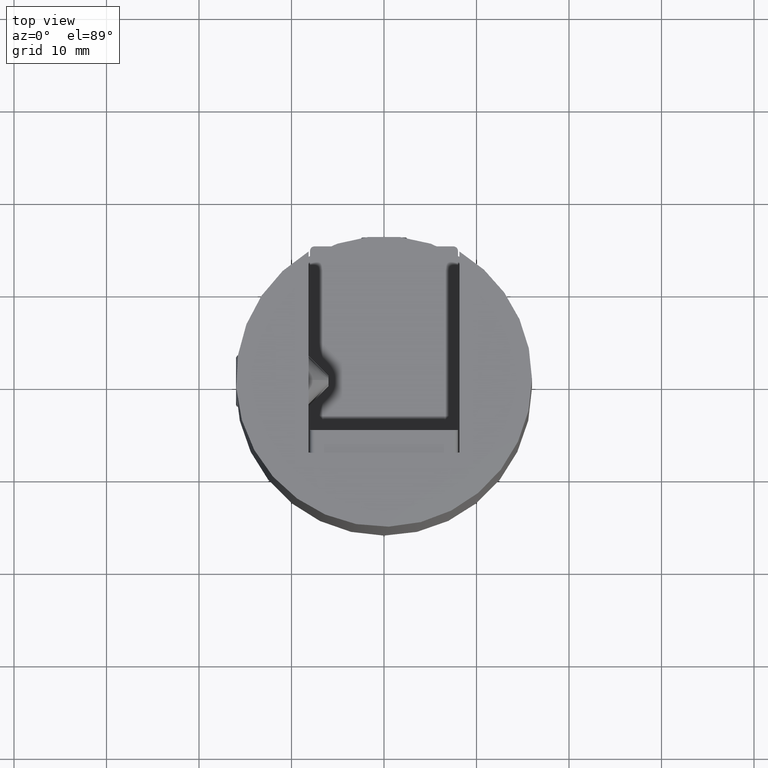
[diagram: clean part render]
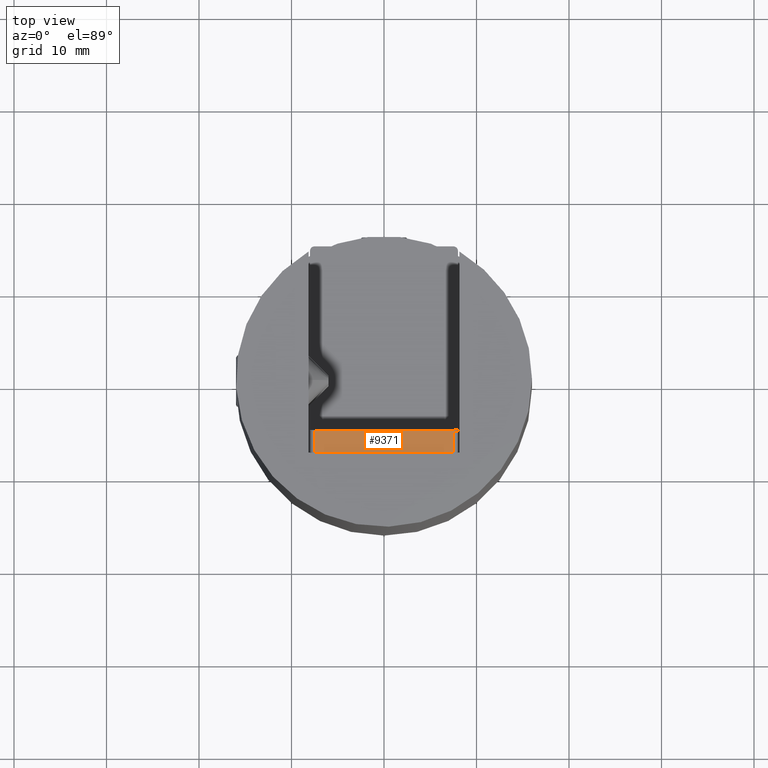
[diagram: same view with one face highlighted and labeled with its STEP entity id]
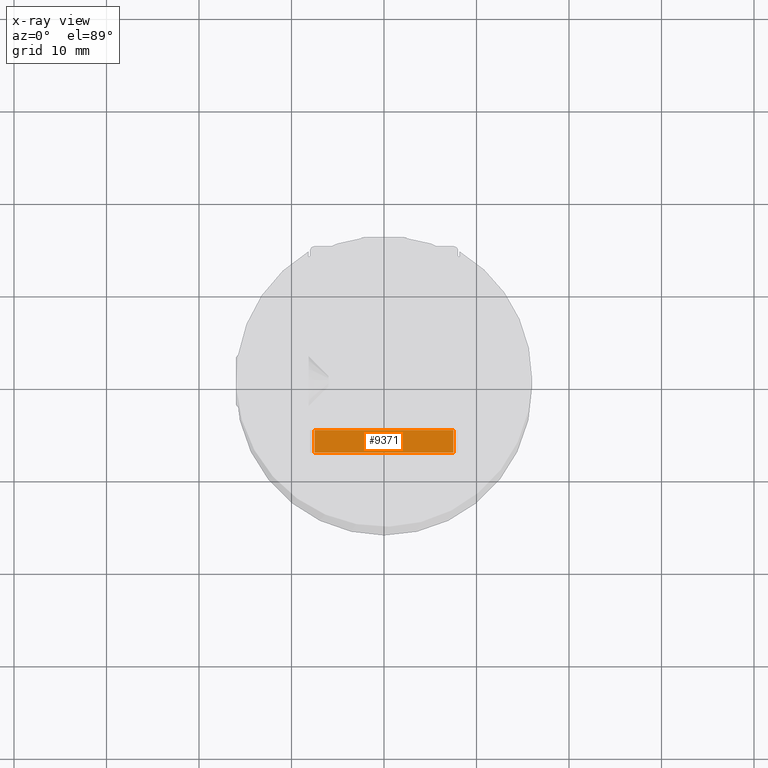
[diagram: x-ray of the same camera — body ghosted, the highlighted face saturated]
A machine part, top view. The second image highlights one B-rep face of the part: STEP entity #9371.
The next image is the same camera in x-ray: the body ghosted, the highlighted face saturated — about 0% of this face is hidden behind the body in this view.
In plain terms, the highlighted planar face has unit normal (0, 0, 1).
Its self-contained STEP definition (entity closure, byte-faithful):
#385 = VERTEX_POINT ( 'NONE', #16170 ) ;
#401 = VERTEX_POINT ( 'NONE', #13034 ) ;
#412 = PLANE ( 'NONE',  #21071 ) ;
#499 = DIRECTION ( 'NONE',  ( 0.000000000000000000, 0.000000000000000000, -1.000000000000000000 ) ) ;
#1289 = CARTESIAN_POINT ( 'NONE',  ( -16.19999999999999929, 2.450000000000000178, -7.499999999999996447 ) ) ;
#1957 = CARTESIAN_POINT ( 'NONE',  ( -16.19999999999999929, 2.450000000000000178, 7.499999999999996447 ) ) ;
#2162 = FACE_OUTER_BOUND ( 'NONE', #5921, .T. ) ;
#2176 = EDGE_CURVE ( 'NONE', #12094, #385, #3944, .T. ) ;
#3267 = ORIENTED_EDGE ( 'NONE', *, *, #2176, .F. ) ;
#3944 = LINE ( 'NONE', #12699, #11796 ) ;
#4029 = ORIENTED_EDGE ( 'NONE', *, *, #19379, .T. ) ;
#4832 = VERTEX_POINT ( 'NONE', #1289 ) ;
#5921 = EDGE_LOOP ( 'NONE', ( #3267, #7541, #14006, #4029 ) ) ;
#6598 = VECTOR ( 'NONE', #499, 1000.000000000000000 ) ;
#7459 = CARTESIAN_POINT ( 'NONE',  ( -16.19999999999999929, 2.450000000000000178, -7.499999999999996447 ) ) ;
#7541 = ORIENTED_EDGE ( 'NONE', *, *, #20139, .F. ) ;
#7874 = DIRECTION ( 'NONE',  ( 0.000000000000000000, 0.000000000000000000, -1.000000000000000000 ) ) ;
#9371 = ADVANCED_FACE ( 'NONE', ( #2162 ), #412, .T. ) ;
#10702 = LINE ( 'NONE', #7459, #10940 ) ;
#10940 = VECTOR ( 'NONE', #12145, 1000.000000000000000 ) ;
#11796 = VECTOR ( 'NONE', #7874, 1000.000000000000000 ) ;
#11856 = DIRECTION ( 'NONE',  ( -0.000000000000000000, -1.000000000000000000, -0.000000000000000000 ) ) ;
#12094 = VERTEX_POINT ( 'NONE', #18776 ) ;
#12145 = DIRECTION ( 'NONE',  ( -0.000000000000000000, -1.000000000000000000, -0.000000000000000000 ) ) ;
#12699 = CARTESIAN_POINT ( 'NONE',  ( -16.19999999999999929, 0.000000000000000000, 7.499999999999996447 ) ) ;
#13034 = CARTESIAN_POINT ( 'NONE',  ( -16.19999999999999929, 2.450000000000000178, 7.499999999999996447 ) ) ;
#13134 = CARTESIAN_POINT ( 'NONE',  ( -16.19999999999999929, 2.450000000000000178, 7.499999999999996447 ) ) ;
#13188 = DIRECTION ( 'NONE',  ( 0.000000000000000000, 0.000000000000000000, 1.000000000000000000 ) ) ;
#13592 = CARTESIAN_POINT ( 'NONE',  ( -16.19999999999999929, 2.450000000000000178, 7.499999999999996447 ) ) ;
#14006 = ORIENTED_EDGE ( 'NONE', *, *, #15197, .T. ) ;
#15197 = EDGE_CURVE ( 'NONE', #401, #4832, #15245, .T. ) ;
#15245 = LINE ( 'NONE', #13134, #6598 ) ;
#15508 = VECTOR ( 'NONE', #11856, 1000.000000000000000 ) ;
#16170 = CARTESIAN_POINT ( 'NONE',  ( -16.19999999999999929, 0.000000000000000000, -7.499999999999996447 ) ) ;
#18241 = DIRECTION ( 'NONE',  ( -1.000000000000000000, 0.000000000000000000, 0.000000000000000000 ) ) ;
#18776 = CARTESIAN_POINT ( 'NONE',  ( -16.19999999999999929, 0.000000000000000000, 7.499999999999996447 ) ) ;
#19379 = EDGE_CURVE ( 'NONE', #4832, #385, #10702, .T. ) ;
#19831 = LINE ( 'NONE', #13592, #15508 ) ;
#20139 = EDGE_CURVE ( 'NONE', #401, #12094, #19831, .T. ) ;
#21071 = AXIS2_PLACEMENT_3D ( 'NONE', #1957, #18241, #13188 ) ;